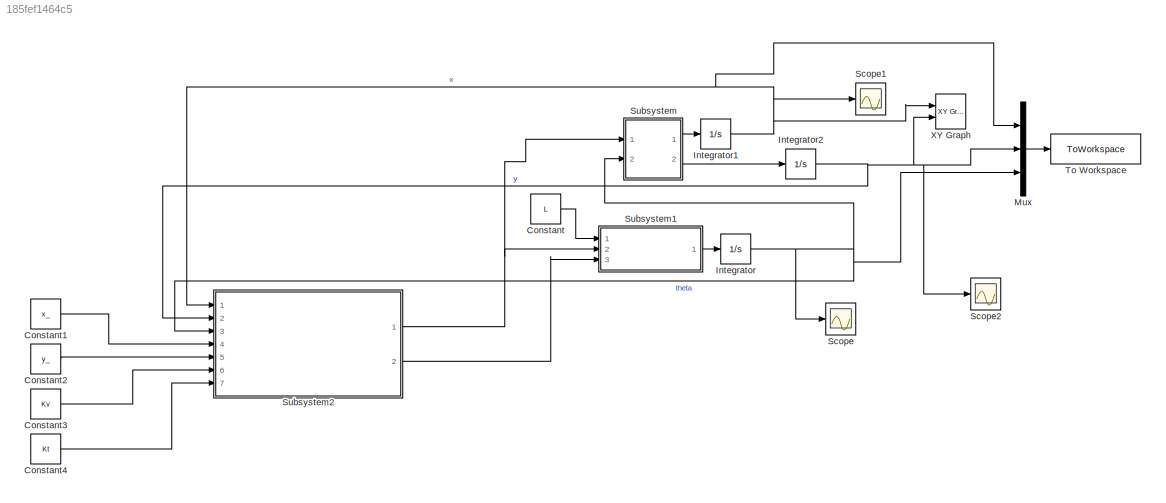
MODEL slx_185fef1464c5
KIND model
CONFIG AbsTol = auto
CONFIG EnableMultiTasking = off
CONFIG FixedStep = auto
CONFIG InitFcn = L = 1;\nx_ = 2;\ny_ = 2;\nKv = 1;\nKt = 1;
CONFIG MaxStep = auto
CONFIG MinStep = auto
CONFIG RelTol = 1e-3
CONFIG SampleTimeConstraint = Unconstrained
CONFIG Solver = VariableStepAuto
CONFIG SolverName = VariableStepAuto
CONFIG StartTime = 0.0
CONFIG StopTime = 10.0
WORKSPACE source: mxarray member
WORKSPACE Kt = 0.44604063924
WORKSPACE Kv = 1.77284659212
WORKSPACE L = 1
WORKSPACE x_ = -2
WORKSPACE y_ = -2
BLOCK [Constant] Constant
  Value = L
BLOCK [Constant] Constant1
  Value = x_
BLOCK [Constant] Constant2
  Value = y_
BLOCK [Constant] Constant3
  Value = Kv
BLOCK [Constant] Constant4
  Value = Kt
BLOCK [Integrator] Integrator
  Ports = [1, 1]
BLOCK [Integrator] Integrator1
  Ports = [1, 1]
BLOCK [Integrator] Integrator2
  Ports = [1, 1]
BLOCK [Mux] Mux
  DisplayOption = bar
  Inputs = 3
  Ports = [3, 1]
BLOCK [Scope] Scope
  Commented = on
  Floating = off
  NumInputPorts = 1
  Ports = [1]
  ScopeSpecificationString = Simulink.scopes.TimeScopeBlockCfg('CurrentConfiguration', extmgr.ConfigurationSet(extmgr.Configuration('Core','General UI',true),extmgr.Configuration('Core','Source UI',true),extmgr.Configuration('Sources','WiredSimulink',true),extmgr.Configuration('Visuals','Time Domain',true,'SerializedDisplays',{struct('MinYLimReal','-0.06549','MaxYLimReal','0.58943','YLabelReal','','MinYLimMag','0.00000','MaxY...<+1325ch>
BLOCK [Scope] Scope1
  Commented = on
  Floating = off
  NumInputPorts = 1
  Ports = [1]
  ScopeSpecificationString = Simulink.scopes.TimeScopeBlockCfg('CurrentConfiguration', extmgr.ConfigurationSet(extmgr.Configuration('Core','General UI',true),extmgr.Configuration('Core','Source UI',true),extmgr.Configuration('Sources','WiredSimulink',true,'DataLoggingVariableName','ScopeData1'),extmgr.Configuration('Visuals','Time Domain',true,'SerializedDisplays',{struct('MinYLimReal','-42.67446','MaxYLimReal','384.07012','Y...<+1370ch>
BLOCK [Scope] Scope2
  Commented = on
  Floating = off
  NumInputPorts = 1
  Ports = [1]
  ScopeSpecificationString = Simulink.scopes.TimeScopeBlockCfg('CurrentConfiguration', extmgr.ConfigurationSet(extmgr.Configuration('Core','General UI',true),extmgr.Configuration('Core','Source UI',true),extmgr.Configuration('Sources','WiredSimulink',true,'DataLoggingVariableName','ScopeData2'),extmgr.Configuration('Visuals','Time Domain',true,'SerializedDisplays',{struct('MinYLimReal','-24.55211','MaxYLimReal','220.969','YLa...<+1362ch>
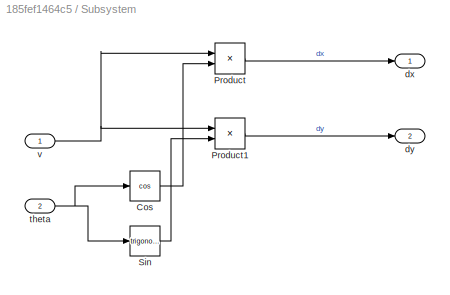
BLOCK [SubSystem] Subsystem
  Ports = [2, 2]
  RequestExecContextInheritance = off
BLOCK [Trigonometry] Subsystem/Cos
  Operator = cos
  Ports = [1, 1]
BLOCK [Product] Subsystem/Product
  InputSameDT = off
  OutDataTypeStr = Inherit: Inherit via internal rule
  Ports = [2, 1]
  RndMeth = Floor
  SaturateOnIntegerOverflow = off
BLOCK [Product] Subsystem/Product1
  InputSameDT = off
  OutDataTypeStr = Inherit: Inherit via internal rule
  Ports = [2, 1]
  RndMeth = Floor
  SaturateOnIntegerOverflow = off
BLOCK [Trigonometry] Subsystem/Sin
  Ports = [1, 1]
BLOCK [Outport] Subsystem/dx
  IconDisplay = Port number
BLOCK [Outport] Subsystem/dy
  IconDisplay = Port number
  Port = 2
BLOCK [Inport] Subsystem/theta
  IconDisplay = Port number
  Port = 2
BLOCK [Inport] Subsystem/v
  IconDisplay = Port number
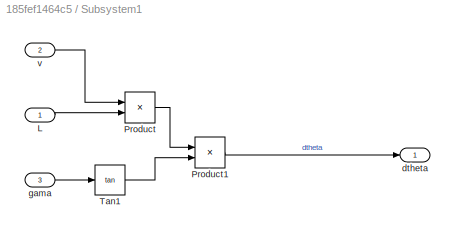
BLOCK [SubSystem] Subsystem1
  Ports = [3, 1]
  RequestExecContextInheritance = off
BLOCK [Inport] Subsystem1/L
  IconDisplay = Port number
BLOCK [Product] Subsystem1/Product
  InputSameDT = off
  Inputs = */
  OutDataTypeStr = Inherit: Inherit via internal rule
  Ports = [2, 1]
  RndMeth = Floor
  SaturateOnIntegerOverflow = off
BLOCK [Product] Subsystem1/Product1
  InputSameDT = off
  OutDataTypeStr = Inherit: Inherit via internal rule
  Ports = [2, 1]
  RndMeth = Floor
  SaturateOnIntegerOverflow = off
BLOCK [Trigonometry] Subsystem1/Tan1
  Operator = tan
  Ports = [1, 1]
BLOCK [Outport] Subsystem1/dtheta 
  IconDisplay = Port number
BLOCK [Inport] Subsystem1/gama
  IconDisplay = Port number
  Port = 3
BLOCK [Inport] Subsystem1/v
  IconDisplay = Port number
  Port = 2
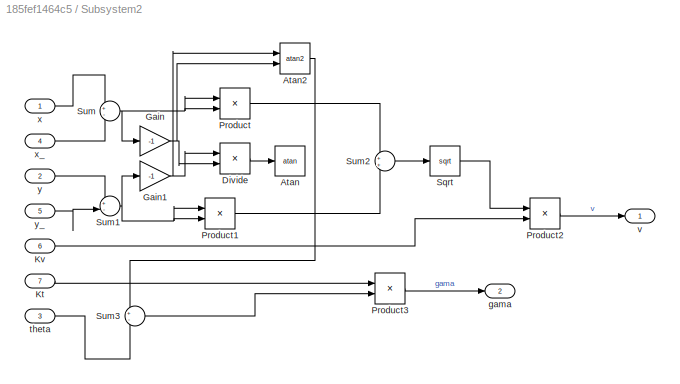
BLOCK [SubSystem] Subsystem2
  Ports = [7, 2]
  RequestExecContextInheritance = off
BLOCK [Trigonometry] Subsystem2/Atan
  Commented = on
  Operator = atan
  Ports = [1, 1]
BLOCK [Trigonometry] Subsystem2/Atan2
  Operator = atan2
  Ports = [2, 1]
BLOCK [Product] Subsystem2/Divide
  Commented = on
  InputSameDT = off
  Inputs = */
  OutDataTypeStr = Inherit: Inherit via internal rule
  Ports = [2, 1]
  RndMeth = Floor
  SaturateOnIntegerOverflow = off
BLOCK [Gain] Subsystem2/Gain
  Gain = -1
  OutDataTypeStr = Inherit: Inherit via internal rule
  ParamDataTypeStr = Inherit: Inherit via internal rule
  SaturateOnIntegerOverflow = off
BLOCK [Gain] Subsystem2/Gain1
  Gain = -1
  OutDataTypeStr = Inherit: Inherit via internal rule
  ParamDataTypeStr = Inherit: Inherit via internal rule
  SaturateOnIntegerOverflow = off
BLOCK [Inport] Subsystem2/Kt
  IconDisplay = Port number
  Port = 7
BLOCK [Inport] Subsystem2/Kv
  IconDisplay = Port number
  Port = 6
BLOCK [Product] Subsystem2/Product
  InputSameDT = off
  OutDataTypeStr = Inherit: Inherit via internal rule
  Ports = [2, 1]
  RndMeth = Floor
  SaturateOnIntegerOverflow = off
BLOCK [Product] Subsystem2/Product1
  InputSameDT = off
  OutDataTypeStr = Inherit: Inherit via internal rule
  Ports = [2, 1]
  RndMeth = Floor
  SaturateOnIntegerOverflow = off
BLOCK [Product] Subsystem2/Product2
  InputSameDT = off
  OutDataTypeStr = Inherit: Inherit via internal rule
  Ports = [2, 1]
  RndMeth = Floor
  SaturateOnIntegerOverflow = off
BLOCK [Product] Subsystem2/Product3
  InputSameDT = off
  OutDataTypeStr = Inherit: Inherit via internal rule
  Ports = [2, 1]
  RndMeth = Floor
  SaturateOnIntegerOverflow = off
BLOCK [Sqrt] Subsystem2/Sqrt
BLOCK [Sum] Subsystem2/Sum
  IconShape = round
  InputSameDT = off
  Inputs = +-
  OutDataTypeStr = Inherit: Inherit via internal rule
  Ports = [2, 1]
  SaturateOnIntegerOverflow = off
BLOCK [Sum] Subsystem2/Sum1
  IconShape = round
  InputSameDT = off
  Inputs = +-
  OutDataTypeStr = Inherit: Inherit via internal rule
  Ports = [2, 1]
  SaturateOnIntegerOverflow = off
BLOCK [Sum] Subsystem2/Sum2
  IconShape = round
  InputSameDT = off
  OutDataTypeStr = Inherit: Inherit via internal rule
  Ports = [2, 1]
  SaturateOnIntegerOverflow = off
BLOCK [Sum] Subsystem2/Sum3
  IconShape = round
  InputSameDT = off
  Inputs = +-
  OutDataTypeStr = Inherit: Inherit via internal rule
  Ports = [2, 1]
  SaturateOnIntegerOverflow = off
BLOCK [Outport] Subsystem2/gama
  IconDisplay = Port number
  Port = 2
BLOCK [Inport] Subsystem2/theta
  IconDisplay = Port number
  Port = 3
BLOCK [Outport] Subsystem2/v
  IconDisplay = Port number
BLOCK [Inport] Subsystem2/x
  IconDisplay = Port number
BLOCK [Inport] Subsystem2/x_
  IconDisplay = Port number
  Port = 4
BLOCK [Inport] Subsystem2/y
  IconDisplay = Port number
  Port = 2
BLOCK [Inport] Subsystem2/y_
  IconDisplay = Port number
  Port = 5
BLOCK [ToWorkspace] To Workspace
  FixptAsFi = on
  MaxDataPoints = inf
  Ports = [1]
  SampleTime = -1
  SaveFormat = Timeseries
  VariableName = simout
BLOCK [Reference] XY Graph  REF=simulink/Sinks/XY Graph
  Commented = on
  Ports = [2]
  SourceBlock = simulink/Sinks/XY Graph
  SourceProductBaseCode = SL
  SourceProductName = Simulink
  SourceType = XY scope.
LINE Constant1:1 -> Subsystem2:4
LINE Constant2:1 -> Subsystem2:5
LINE Constant3:1 -> Subsystem2:6
LINE Constant4:1 -> Subsystem2:7
LINE Constant:1 -> Subsystem1:1
NET Integrator1:1 -> Mux:1, Scope1:1, Subsystem2:1, XY Graph:1
NET Integrator2:1 -> Mux:2, Scope2:1, Subsystem2:2, XY Graph:2
NET Integrator:1 -> Mux:3, Scope:1, Subsystem2:3, Subsystem:2
LINE Mux:1 -> To Workspace:1
LINE Subsystem/Cos:1 -> Subsystem/Product:2
LINE Subsystem/Product1:1 -> Subsystem/dy:1
LINE Subsystem/Product:1 -> Subsystem/dx:1
LINE Subsystem/Sin:1 -> Subsystem/Product1:2
NET Subsystem/theta:1 -> Subsystem/Cos:1, Subsystem/Sin:1
NET Subsystem/v:1 -> Subsystem/Product1:1, Subsystem/Product:1
LINE Subsystem1/L:1 -> Subsystem1/Product:2
LINE Subsystem1/Product1:1 -> Subsystem1/dtheta :1
LINE Subsystem1/Product:1 -> Subsystem1/Product1:1
LINE Subsystem1/Tan1:1 -> Subsystem1/Product1:2
LINE Subsystem1/gama:1 -> Subsystem1/Tan1:1
LINE Subsystem1/v:1 -> Subsystem1/Product:1
LINE Subsystem1:1 -> Integrator:1
LINE Subsystem2/Atan2:1 -> Subsystem2/Sum3:1
LINE Subsystem2/Divide:1 -> Subsystem2/Atan:1
NET Subsystem2/Gain1:1 -> Subsystem2/Atan2:1, Subsystem2/Divide:1
NET Subsystem2/Gain:1 -> Subsystem2/Atan2:2, Subsystem2/Divide:2
LINE Subsystem2/Kt:1 -> Subsystem2/Product3:1
LINE Subsystem2/Kv:1 -> Subsystem2/Product2:2
LINE Subsystem2/Product1:1 -> Subsystem2/Sum2:2
LINE Subsystem2/Product2:1 -> Subsystem2/v:1
LINE Subsystem2/Product3:1 -> Subsystem2/gama:1
LINE Subsystem2/Product:1 -> Subsystem2/Sum2:1
LINE Subsystem2/Sqrt:1 -> Subsystem2/Product2:1
NET Subsystem2/Sum1:1 -> Subsystem2/Gain1:1, Subsystem2/Product1:1, Subsystem2/Product1:2
LINE Subsystem2/Sum2:1 -> Subsystem2/Sqrt:1
LINE Subsystem2/Sum3:1 -> Subsystem2/Product3:2
NET Subsystem2/Sum:1 -> Subsystem2/Gain:1, Subsystem2/Product:1, Subsystem2/Product:2
LINE Subsystem2/theta:1 -> Subsystem2/Sum3:2
LINE Subsystem2/x:1 -> Subsystem2/Sum:1
LINE Subsystem2/x_:1 -> Subsystem2/Sum:2
LINE Subsystem2/y:1 -> Subsystem2/Sum1:1
LINE Subsystem2/y_:1 -> Subsystem2/Sum1:2
NET Subsystem2:1 -> Subsystem1:2, Subsystem:1
LINE Subsystem2:2 -> Subsystem1:3
LINE Subsystem:1 -> Integrator1:1
LINE Subsystem:2 -> Integrator2:1
note: NET lines group one-source signal fan-out (src -> all destinations, sorted); 1:1 wires keep LINE
